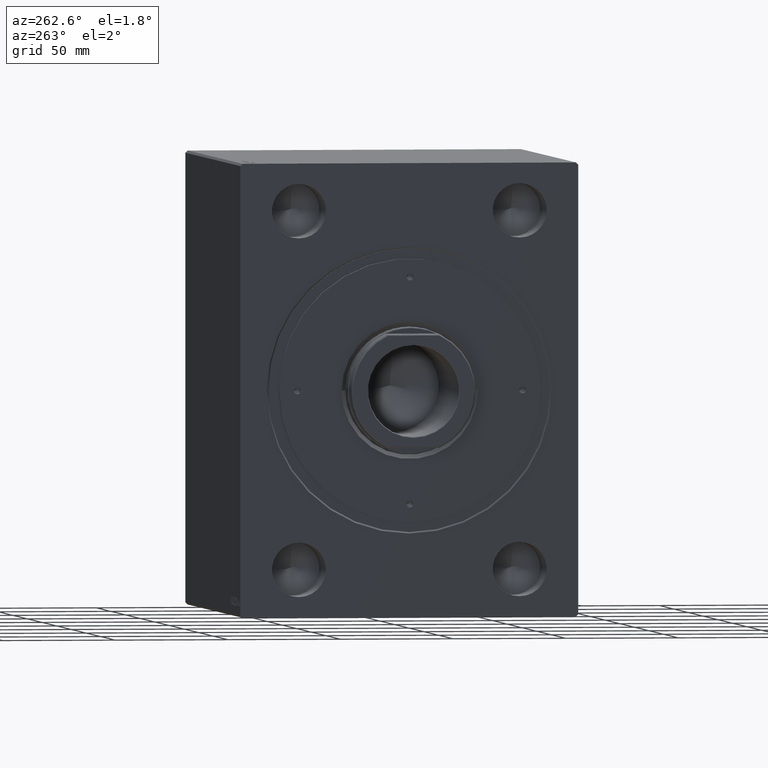
[diagram: clean part render]
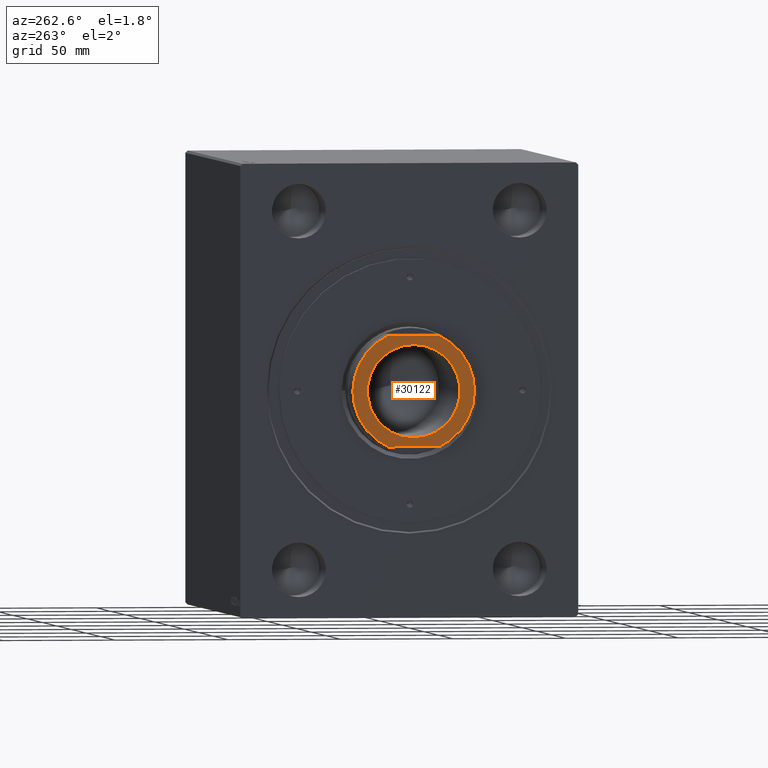
[diagram: same view with one face highlighted and labeled with its STEP entity id]
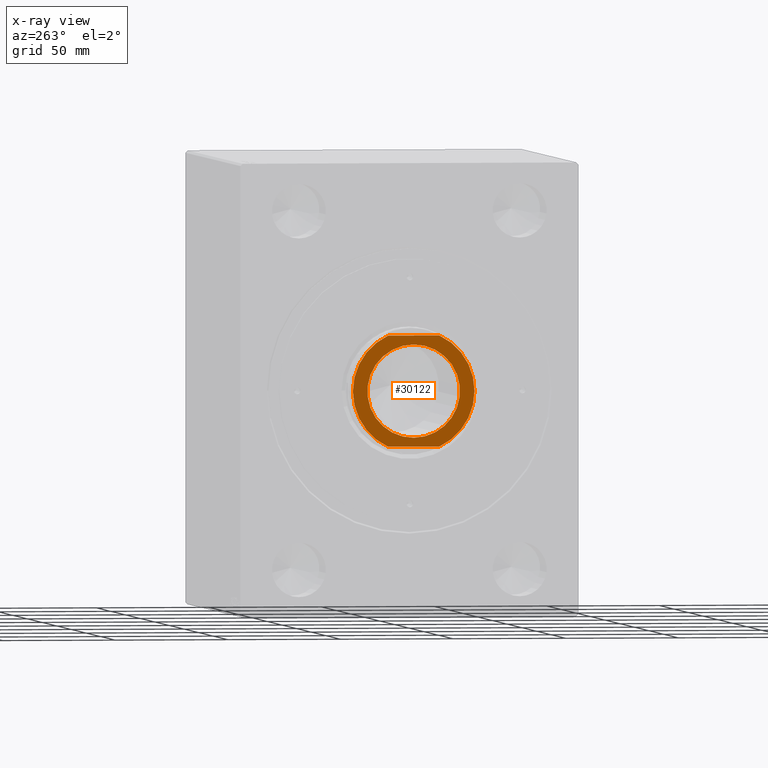
[diagram: x-ray of the same camera — body ghosted, the highlighted face saturated]
A machine part, auxiliary view. The second image highlights one B-rep face of the part: STEP entity #30122.
The next image is the same camera in x-ray: the body ghosted, the highlighted face saturated — about 0% of this face is hidden behind the body in this view.
In plain terms, the highlighted planar face has unit normal (-1, 0, 0).
Its self-contained STEP definition (entity closure, byte-faithful):
#1542 = ORIENTED_EDGE ( 'NONE', *, *, #43780, .T. ) ;
#1760 = EDGE_CURVE ( 'NONE', #21276, #13642, #2200, .T. ) ;
#2200 = CIRCLE ( 'NONE', #22084, 27.00000000000002487 ) ;
#3793 = CARTESIAN_POINT ( 'NONE',  ( 0.000000000000000000, 0.000000000000000000, 169.7000000000000171 ) ) ;
#4079 = DIRECTION ( 'NONE',  ( -0.000000000000000000, -0.000000000000000000, -1.000000000000000000 ) ) ;
#6942 = CARTESIAN_POINT ( 'NONE',  ( -20.54999999999992966, 2.516649172247802088E-15, 169.7000000000000171 ) ) ;
#7415 = DIRECTION ( 'NONE',  ( 1.000000000000000000, 0.000000000000000000, 0.000000000000000000 ) ) ;
#7964 = DIRECTION ( 'NONE',  ( 1.000000000000000000, 0.000000000000000000, 0.000000000000000000 ) ) ;
#8512 = DIRECTION ( 'NONE',  ( 1.000000000000000000, 0.000000000000000000, 0.000000000000000000 ) ) ;
#11296 = DIRECTION ( 'NONE',  ( 0.000000000000000000, 0.000000000000000000, 1.000000000000000000 ) ) ;
#11995 = CIRCLE ( 'NONE', #42548, 20.54999999999992966 ) ;
#12007 = PLANE ( 'NONE',  #28263 ) ;
#12315 = CARTESIAN_POINT ( 'NONE',  ( 24.50000000000000000, -11.34680571791026793, 169.7000000000000171 ) ) ;
#13058 = CARTESIAN_POINT ( 'NONE',  ( -24.50000000000000000, -11.45643923738965597, 169.7000000000000171 ) ) ;
#13642 = VERTEX_POINT ( 'NONE', #12315 ) ;
#13747 = ORIENTED_EDGE ( 'NONE', *, *, #41520, .T. ) ;
#14011 = LINE ( 'NONE', #24466, #17795 ) ;
#14183 = CARTESIAN_POINT ( 'NONE',  ( 24.50000000000000355, 11.34680571791026793, 169.7000000000000171 ) ) ;
#14458 = DIRECTION ( 'NONE',  ( 0.000000000000000000, 1.000000000000000000, 0.000000000000000000 ) ) ;
#16055 = VERTEX_POINT ( 'NONE', #14183 ) ;
#17795 = VECTOR ( 'NONE', #14458, 1000.000000000000000 ) ;
#18137 = CARTESIAN_POINT ( 'NONE',  ( 20.54999999999992966, 0.000000000000000000, 169.7000000000000171 ) ) ;
#18458 = CARTESIAN_POINT ( 'NONE',  ( 0.000000000000000000, 0.000000000000000000, 169.7000000000000171 ) ) ;
#18532 = CIRCLE ( 'NONE', #43417, 27.00000000000002487 ) ;
#21276 = VERTEX_POINT ( 'NONE', #39795 ) ;
#22017 = FACE_OUTER_BOUND ( 'NONE', #28735, .T. ) ;
#22084 = AXIS2_PLACEMENT_3D ( 'NONE', #3793, #28441, #42035 ) ;
#22602 = ORIENTED_EDGE ( 'NONE', *, *, #42731, .T. ) ;
#24265 = ORIENTED_EDGE ( 'NONE', *, *, #33090, .T. ) ;
#24466 = CARTESIAN_POINT ( 'NONE',  ( 24.50000000000000000, 11.45643923738965597, 169.7000000000000171 ) ) ;
#25326 = EDGE_CURVE ( 'NONE', #33704, #25622, #43793, .T. ) ;
#25342 = DIRECTION ( 'NONE',  ( 0.000000000000000000, 0.000000000000000000, 1.000000000000000000 ) ) ;
#25622 = VERTEX_POINT ( 'NONE', #6942 ) ;
#27198 = ORIENTED_EDGE ( 'NONE', *, *, #1760, .T. ) ;
#28263 = AXIS2_PLACEMENT_3D ( 'NONE', #18458, #25342, #39371 ) ;
#28441 = DIRECTION ( 'NONE',  ( 0.000000000000000000, 0.000000000000000000, 1.000000000000000000 ) ) ;
#28451 = FACE_BOUND ( 'NONE', #36714, .T. ) ;
#28735 = EDGE_LOOP ( 'NONE', ( #22602, #27198, #13747, #1542 ) ) ;
#29892 = VECTOR ( 'NONE', #32852, 1000.000000000000000 ) ;
#29944 = LINE ( 'NONE', #13058, #29892 ) ;
#29966 = ORIENTED_EDGE ( 'NONE', *, *, #25326, .T. ) ;
#30122 = ADVANCED_FACE ( 'NONE', ( #22017, #28451 ), #12007, .T. ) ;
#32852 = DIRECTION ( 'NONE',  ( 0.000000000000000000, -1.000000000000000000, 0.000000000000000000 ) ) ;
#33090 = EDGE_CURVE ( 'NONE', #25622, #33704, #11995, .T. ) ;
#33704 = VERTEX_POINT ( 'NONE', #18137 ) ;
#35359 = CARTESIAN_POINT ( 'NONE',  ( -24.50000000000000000, 11.34680571791026793, 169.7000000000000171 ) ) ;
#36714 = EDGE_LOOP ( 'NONE', ( #29966, #24265 ) ) ;
#37876 = CARTESIAN_POINT ( 'NONE',  ( 0.000000000000000000, 0.000000000000000000, 169.7000000000000171 ) ) ;
#37993 = CARTESIAN_POINT ( 'NONE',  ( 0.000000000000000000, 0.000000000000000000, 169.7000000000000171 ) ) ;
#38091 = AXIS2_PLACEMENT_3D ( 'NONE', #38981, #42782, #8512 ) ;
#38981 = CARTESIAN_POINT ( 'NONE',  ( 0.000000000000000000, 0.000000000000000000, 169.7000000000000171 ) ) ;
#39371 = DIRECTION ( 'NONE',  ( 1.000000000000000000, 0.000000000000000000, -0.000000000000000000 ) ) ;
#39795 = CARTESIAN_POINT ( 'NONE',  ( -24.50000000000000000, -11.34680571791026793, 169.7000000000000171 ) ) ;
#41520 = EDGE_CURVE ( 'NONE', #13642, #16055, #14011, .T. ) ;
#42035 = DIRECTION ( 'NONE',  ( 1.000000000000000000, 0.000000000000000000, 0.000000000000000000 ) ) ;
#42548 = AXIS2_PLACEMENT_3D ( 'NONE', #37876, #4079, #7415 ) ;
#42731 = EDGE_CURVE ( 'NONE', #43462, #21276, #29944, .T. ) ;
#42782 = DIRECTION ( 'NONE',  ( -0.000000000000000000, -0.000000000000000000, -1.000000000000000000 ) ) ;
#43417 = AXIS2_PLACEMENT_3D ( 'NONE', #37993, #11296, #7964 ) ;
#43462 = VERTEX_POINT ( 'NONE', #35359 ) ;
#43780 = EDGE_CURVE ( 'NONE', #16055, #43462, #18532, .T. ) ;
#43793 = CIRCLE ( 'NONE', #38091, 20.54999999999992966 ) ;